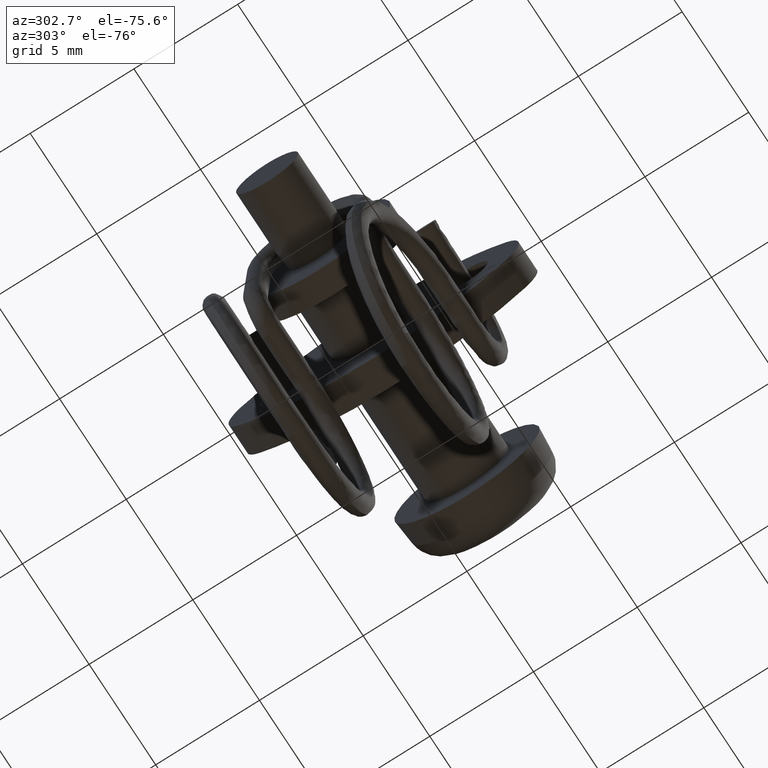
[diagram: clean part render]
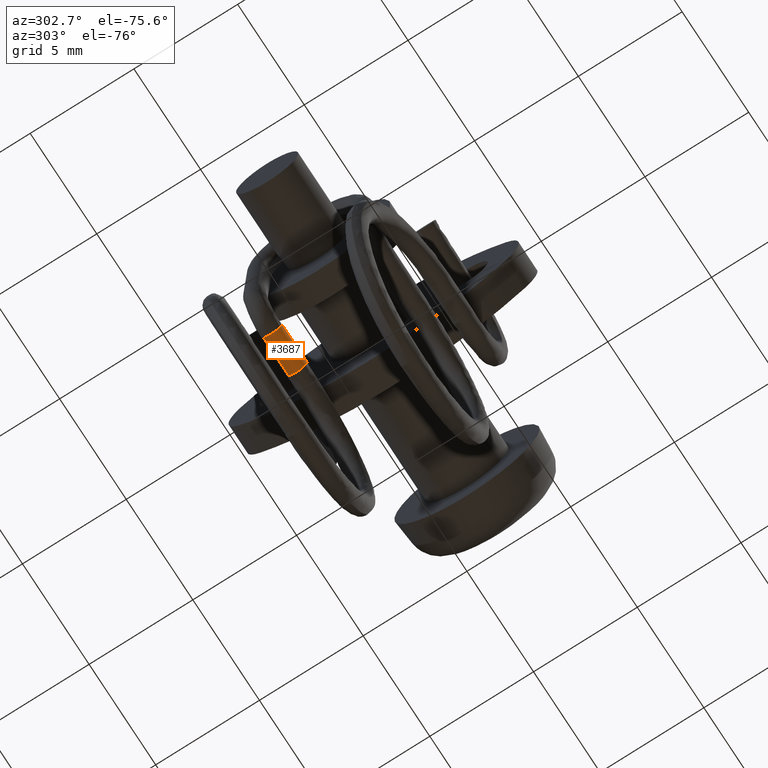
[diagram: same view with one face highlighted and labeled with its STEP entity id]
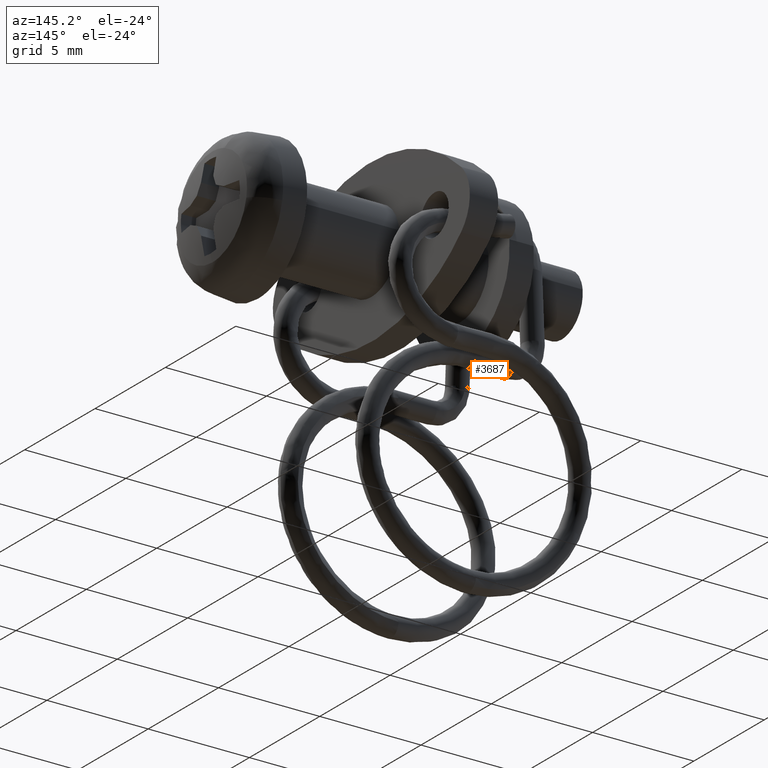
[diagram: same view with one face highlighted and labeled with its STEP entity id]
A machine part, auxiliary view. The second image highlights one B-rep face of the part: STEP entity #3687.
A second angle (auxiliary view) of the same face is appended — the face is thin or edge-on in the first view.
In plain terms, the highlighted face is a freeform B-spline surface patch.
Its self-contained STEP definition (entity closure, byte-faithful):
#3559=CARTESIAN_POINT('',(-8.452490891361721,3.128645391897408,-5.226538921408837));
#3560=CARTESIAN_POINT('',(-8.452490891361844,2.802106470488572,-5.605184313306262));
#3561=CARTESIAN_POINT('',(-8.452490891361961,2.423461078591148,-5.278645391897426));
#3562=CARTESIAN_POINT('',(-8.452490891362078,2.044815686693724,-4.952106470488591));
#3563=CARTESIAN_POINT('',(-8.452490891361956,2.371354608102560,-4.573461078591166));
#3564=CARTESIAN_POINT('',(-10.448687727815820,3.128645391898081,-5.226538921408775));
#3565=CARTESIAN_POINT('',(-10.448687727815946,2.802106470489246,-5.605184313306200));
#3566=CARTESIAN_POINT('',(-10.448687727816059,2.423461078591821,-5.278645391897364));
#3567=CARTESIAN_POINT('',(-10.448687727816182,2.044815686694397,-4.952106470488529));
#3568=CARTESIAN_POINT('',(-10.448687727816059,2.371354608103232,-4.573461078591103));
#3576=(BOUNDED_SURFACE()B_SPLINE_SURFACE(2,1,((#3559,#3564),(#3560,#3565),(#3561,#3566),(#3562,#3567),(#3563,#3568)),.UNSPECIFIED.,.F.,.F.,.U.)B_SPLINE_SURFACE_WITH_KNOTS((3,2,3),(2,2),(3.141592653589793,4.712388980384690,6.283185307179586),(0.0,1.0),.UNSPECIFIED.)GEOMETRIC_REPRESENTATION_ITEM()RATIONAL_B_SPLINE_SURFACE(((1.0,1.0),(0.707106781186548,0.707106781186548),(1.0,1.0),(0.707106781186548,0.707106781186548),(1.0,1.0)))REPRESENTATION_ITEM('')SURFACE());
#3577=CARTESIAN_POINT('',(-10.400000000002560,3.128645391735156,-5.226538921597681));
#3578=VERTEX_POINT('',#3577);
#3579=CARTESIAN_POINT('',(-10.400000000002681,2.750000000000640,-5.399999999999940));
#3580=VERTEX_POINT('',#3579);
#3581=CARTESIAN_POINT('',(-10.400000000002555,3.128645391735156,-5.226538921597681));
#3582=CARTESIAN_POINT('',(-10.400000000002603,2.979054785922354,-5.399999999999940));
#3583=CARTESIAN_POINT('',(-10.400000000002681,2.750000000000640,-5.399999999999940));
#3591=(BOUNDED_CURVE()B_SPLINE_CURVE(2,(#3581,#3582,#3583),.UNSPECIFIED.,.F.,.U.)B_SPLINE_CURVE_WITH_KNOTS((3,3),(0.363865950995501,0.500000000000000),.UNSPECIFIED.)CURVE()GEOMETRIC_REPRESENTATION_ITEM()RATIONAL_B_SPLINE_CURVE((0.854715282032997,0.840509040787855,1.0))REPRESENTATION_ITEM(''));
#3592=EDGE_CURVE('',#3578,#3580,#3591,.T.);
#3593=ORIENTED_EDGE('',*,*,#3592,.F.);
#3594=CARTESIAN_POINT('',(-8.499998453688917,3.128329464205620,-5.226269253411047));
#3595=VERTEX_POINT('',#3594);
#3596=CARTESIAN_POINT('',(-8.499998453688917,3.128329464205620,-5.226269253411047));
#3597=CARTESIAN_POINT('',(-10.400000000002560,3.128645391735156,-5.226538921597681));
#3598=QUASI_UNIFORM_CURVE('',1,(#3596,#3597),.UNSPECIFIED.,.F.,.U.);
#3599=EDGE_CURVE('',#3595,#3578,#3598,.T.);
#3600=ORIENTED_EDGE('',*,*,#3599,.F.);
#3601=CARTESIAN_POINT('',(-8.500000000001350,2.750000000000000,-5.400000000000000));
#3602=VERTEX_POINT('',#3601);
#3603=CARTESIAN_POINT('',(-8.499998453688917,3.128329464205620,-5.226269253411047));
#3604=CARTESIAN_POINT('',(-8.500000000001355,2.979649331413866,-5.400135091814932));
#3605=CARTESIAN_POINT('',(-8.500000000001350,2.750000000000000,-5.400000000000000));
#3613=(BOUNDED_CURVE()B_SPLINE_CURVE(2,(#3603,#3604,#3605),.UNSPECIFIED.,.F.,.U.)B_SPLINE_CURVE_WITH_KNOTS((3,3),(0.363648078283061,0.500000000000000),.UNSPECIFIED.)CURVE()GEOMETRIC_REPRESENTATION_ITEM()RATIONAL_B_SPLINE_CURVE((0.854761199061615,0.840253787027703,1.0))REPRESENTATION_ITEM(''));
#3614=EDGE_CURVE('',#3595,#3602,#3613,.T.);
#3615=ORIENTED_EDGE('',*,*,#3614,.T.);
#3616=CARTESIAN_POINT('',(-8.499999996773642,2.251217172387632,-4.934866758941752));
#3617=VERTEX_POINT('',#3616);
#3618=CARTESIAN_POINT('',(-8.500000000001350,2.750000000000000,-5.400000000000000));
#3619=CARTESIAN_POINT('',(-8.500000000001350,2.283731825922233,-5.400000000000001));
#3620=CARTESIAN_POINT('',(-8.499999996773642,2.251217172387632,-4.934866758941751));
#3628=(BOUNDED_CURVE()B_SPLINE_CURVE(2,(#3618,#3619,#3620),.UNSPECIFIED.,.F.,.U.)B_SPLINE_CURVE_WITH_KNOTS((3,3),(0.500000000000000,0.737833594710966),.UNSPECIFIED.)CURVE()GEOMETRIC_REPRESENTATION_ITEM()RATIONAL_B_SPLINE_CURVE((1.0,0.721360611612525,0.972879682171114))REPRESENTATION_ITEM(''));
#3629=EDGE_CURVE('',#3602,#3617,#3628,.T.);
#3630=ORIENTED_EDGE('',*,*,#3629,.T.);
#3631=CARTESIAN_POINT('',(-8.499995753832776,2.371354589992294,-4.573461062648841));
#3632=VERTEX_POINT('',#3631);
#3633=CARTESIAN_POINT('',(-8.499999996773642,2.251217172387632,-4.934866758941752));
#3634=CARTESIAN_POINT('',(-8.499999850332413,2.249999990845941,-4.917454560664512));
#3635=CARTESIAN_POINT('',(-8.499999693435152,2.249999991010946,-4.899999871484990));
#3636=CARTESIAN_POINT('',(-8.499998023135289,2.249999992767556,-4.714180409225160));
#3637=CARTESIAN_POINT('',(-8.499995753832776,2.371354589992295,-4.573461062648842));
#3645=(BOUNDED_CURVE()B_SPLINE_CURVE(2,(#3633,#3634,#3635,#3636,#3637),.UNSPECIFIED.,.F.,.U.)B_SPLINE_CURVE_WITH_KNOTS((3,2,3),(0.737833594710966,0.750000000000000,0.863865936327273),.UNSPECIFIED.)CURVE()GEOMETRIC_REPRESENTATION_ITEM()RATIONAL_B_SPLINE_CURVE((0.972879682171116,0.985746169574023,1.0,0.866597757583590,0.854715285094399))REPRESENTATION_ITEM(''));
#3646=EDGE_CURVE('',#3617,#3632,#3645,.T.);
#3647=ORIENTED_EDGE('',*,*,#3646,.T.);
#3648=CARTESIAN_POINT('',(-10.400000000002811,2.371354608266125,-4.573461078402200));
#3649=VERTEX_POINT('',#3648);
#3650=CARTESIAN_POINT('',(-8.499995753832776,2.371354589992294,-4.573461062648841));
#3651=CARTESIAN_POINT('',(-10.400000000002811,2.371354608266125,-4.573461078402200));
#3652=QUASI_UNIFORM_CURVE('',1,(#3650,#3651),.UNSPECIFIED.,.F.,.U.);
#3653=EDGE_CURVE('',#3632,#3649,#3652,.T.);
#3654=ORIENTED_EDGE('',*,*,#3653,.T.);
#3655=CARTESIAN_POINT('',(-10.400000000097720,2.251162986206274,-4.934082747376257));
#3656=VERTEX_POINT('',#3655);
#3657=CARTESIAN_POINT('',(-10.400000000097720,2.251162986206274,-4.934082747376257));
#3658=CARTESIAN_POINT('',(-10.400000000002846,2.250000000000640,-4.917061215858510));
#3659=CARTESIAN_POINT('',(-10.400000000002850,2.250000000000640,-4.899999999999940));
#3660=CARTESIAN_POINT('',(-10.400000000002848,2.250000000000640,-4.714180484573713));
#3661=CARTESIAN_POINT('',(-10.400000000002809,2.371354608266125,-4.573461078402200));
#3669=(BOUNDED_CURVE()B_SPLINE_CURVE(2,(#3657,#3658,#3659,#3660,#3661),.UNSPECIFIED.,.F.,.U.)B_SPLINE_CURVE_WITH_KNOTS((3,2,3),(0.738104035819531,0.750000000000000,0.863865950995501),.UNSPECIFIED.)CURVE()GEOMETRIC_REPRESENTATION_ITEM()RATIONAL_B_SPLINE_CURVE((0.973452373453846,0.986063011041172,1.0,0.866597740398691,0.854715282032997))REPRESENTATION_ITEM(''));
#3670=EDGE_CURVE('',#3656,#3649,#3669,.T.);
#3671=ORIENTED_EDGE('',*,*,#3670,.F.);
#3672=CARTESIAN_POINT('',(-10.400000000002681,2.750000000000640,-5.399999999999940));
#3673=CARTESIAN_POINT('',(-10.400000000002837,2.282996510539996,-5.399999999999939));
#3674=CARTESIAN_POINT('',(-10.400000000097716,2.251162986206274,-4.934082747376257));
#3682=(BOUNDED_CURVE()B_SPLINE_CURVE(2,(#3672,#3673,#3674),.UNSPECIFIED.,.F.,.U.)B_SPLINE_CURVE_WITH_KNOTS((3,3),(0.500000000000000,0.738104035819531),.UNSPECIFIED.)CURVE()GEOMETRIC_REPRESENTATION_ITEM()RATIONAL_B_SPLINE_CURVE((1.0,0.721043770145376,0.973452373453845))REPRESENTATION_ITEM(''));
#3683=EDGE_CURVE('',#3580,#3656,#3682,.T.);
#3684=ORIENTED_EDGE('',*,*,#3683,.F.);
#3685=EDGE_LOOP('',(#3593,#3600,#3615,#3630,#3647,#3654,#3671,#3684));
#3686=FACE_OUTER_BOUND('',#3685,.T.);
#3687=ADVANCED_FACE('',(#3686),#3576,.T.);